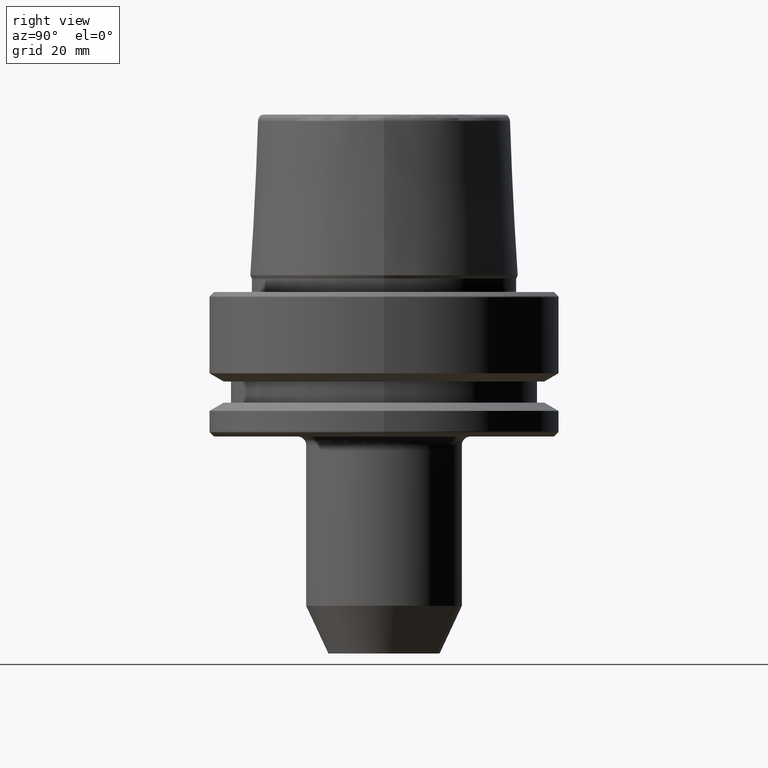
[diagram: clean part render]
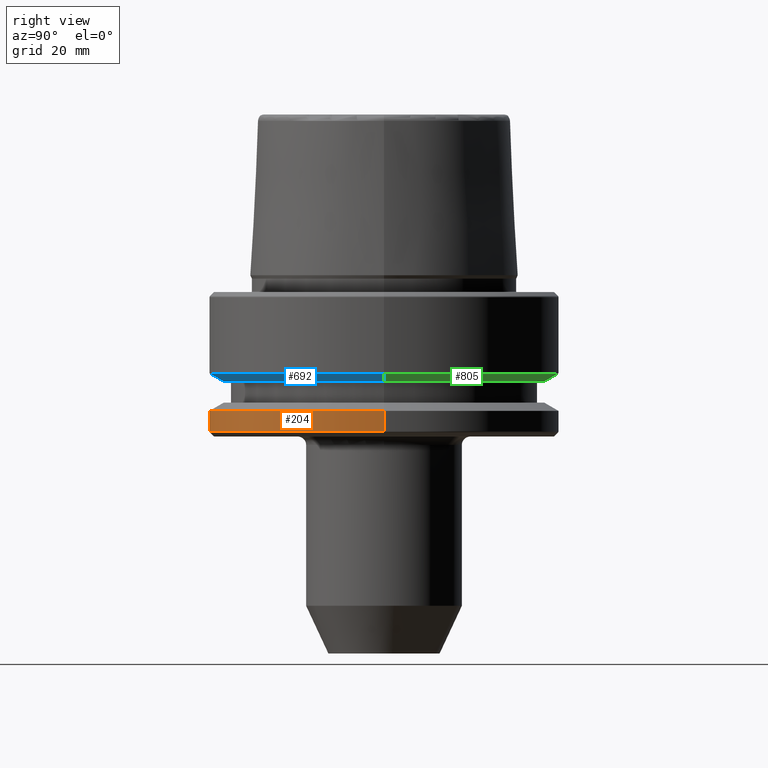
[diagram: same view with three faces highlighted in distinct colors, each labeled with its STEP entity id]
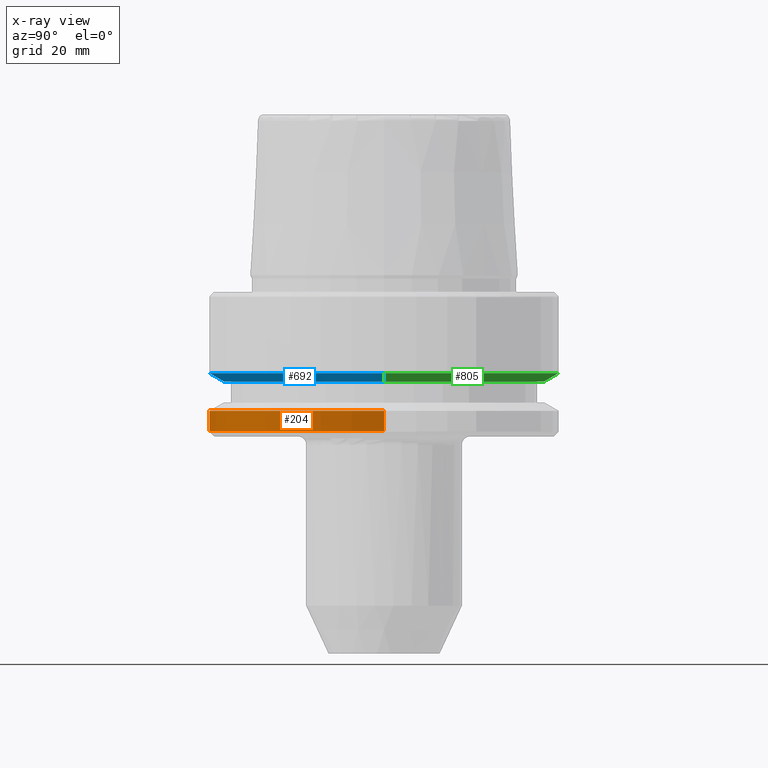
[diagram: x-ray of the same camera — body ghosted, the three highlighted faces saturated]
A machine part, right view with three faces highlighted in distinct colors.
The next image is the same camera in x-ray (body ghosted, the three faces saturated) — at least one of them is partly hidden behind the body in this view.
Their STEP definitions:

[orange] entity #204 — the highlighted cylindrical surface (partial cylindrical patch) has radius 31.5 mm, axis along (-0, -0, 1).
#15 = CIRCLE ( 'NONE', #195, 31.50000000000000000 ) ;
#28 = CIRCLE ( 'NONE', #1247, 31.50000000000000000 ) ;
#40 = ORIENTED_EDGE ( 'NONE', *, *, #126, .F. ) ;
#45 = CARTESIAN_POINT ( 'NONE',  ( 0.0000000000000000000, 0.0000000000000000000, 78.96908074195309300 ) ) ;
#114 = ORIENTED_EDGE ( 'NONE', *, *, #1073, .T. ) ;
#117 = EDGE_LOOP ( 'NONE', ( #1128, #613, #114, #40 ) ) ;
#126 = EDGE_CURVE ( 'NONE', #666, #1158, #28, .T. ) ;
#155 = VECTOR ( 'NONE', #1110, 1000.000000000000000 ) ;
#195 = AXIS2_PLACEMENT_3D ( 'NONE', #373, #1050, #475 ) ;
#201 = CARTESIAN_POINT ( 'NONE',  ( 31.50000000000000000, 0.0000000000000000000, 78.96908074195309300 ) ) ;
#204 = ADVANCED_FACE ( 'NONE', ( #1044 ), #1246, .T. ) ;
#308 = DIRECTION ( 'NONE',  ( -0.0000000000000000000, -0.0000000000000000000, 1.000000000000000000 ) ) ;
#351 = VERTEX_POINT ( 'NONE', #1201 ) ;
#371 = AXIS2_PLACEMENT_3D ( 'NONE', #45, #514, #949 ) ;
#373 = CARTESIAN_POINT ( 'NONE',  ( 0.0000000000000000000, 0.0000000000000000000, -25.03431457505077200 ) ) ;
#393 = VERTEX_POINT ( 'NONE', #1185 ) ;
#442 = CARTESIAN_POINT ( 'NONE',  ( -31.50000000000000000, 3.857637417314162700E-015, 78.96908074195309300 ) ) ;
#447 = VECTOR ( 'NONE', #308, 1000.000000000000000 ) ;
#471 = DIRECTION ( 'NONE',  ( 1.000000000000000000, 0.0000000000000000000, 0.0000000000000000000 ) ) ;
#475 = DIRECTION ( 'NONE',  ( 1.000000000000000000, 0.0000000000000000000, 0.0000000000000000000 ) ) ;
#514 = DIRECTION ( 'NONE',  ( -0.0000000000000000000, -0.0000000000000000000, 1.000000000000000000 ) ) ;
#584 = CARTESIAN_POINT ( 'NONE',  ( -31.50000000000000000, 0.0000000000000000000, -21.37749907475931700 ) ) ;
#603 = EDGE_CURVE ( 'NONE', #351, #666, #899, .T. ) ;
#613 = ORIENTED_EDGE ( 'NONE', *, *, #841, .T. ) ;
#645 = LINE ( 'NONE', #201, #447 ) ;
#666 = VERTEX_POINT ( 'NONE', #584 ) ;
#841 = EDGE_CURVE ( 'NONE', #351, #393, #15, .T. ) ;
#899 = LINE ( 'NONE', #442, #155 ) ;
#949 = DIRECTION ( 'NONE',  ( 1.000000000000000000, 0.0000000000000000000, 0.0000000000000000000 ) ) ;
#1019 = CARTESIAN_POINT ( 'NONE',  ( 0.0000000000000000000, 0.0000000000000000000, -21.37749907475931700 ) ) ;
#1044 = FACE_OUTER_BOUND ( 'NONE', #117, .T. ) ;
#1050 = DIRECTION ( 'NONE',  ( -0.0000000000000000000, -0.0000000000000000000, 1.000000000000000000 ) ) ;
#1065 = DIRECTION ( 'NONE',  ( -0.0000000000000000000, -0.0000000000000000000, 1.000000000000000000 ) ) ;
#1073 = EDGE_CURVE ( 'NONE', #393, #1158, #645, .T. ) ;
#1110 = DIRECTION ( 'NONE',  ( -0.0000000000000000000, -0.0000000000000000000, 1.000000000000000000 ) ) ;
#1128 = ORIENTED_EDGE ( 'NONE', *, *, #603, .F. ) ;
#1158 = VERTEX_POINT ( 'NONE', #1194 ) ;
#1185 = CARTESIAN_POINT ( 'NONE',  ( 31.50000000000000000, 0.0000000000000000000, -25.03431457505077200 ) ) ;
#1194 = CARTESIAN_POINT ( 'NONE',  ( 31.50000000000000000, 3.857637417314162700E-015, -21.37749907475931700 ) ) ;
#1201 = CARTESIAN_POINT ( 'NONE',  ( -31.50000000000000000, 3.857637417314162700E-015, -25.03431457505077200 ) ) ;
#1246 = CYLINDRICAL_SURFACE ( 'NONE', #371, 31.50000000000000000 ) ;
#1247 = AXIS2_PLACEMENT_3D ( 'NONE', #1019, #1065, #471 ) ;

[blue] entity #692 — the highlighted conical surface has half-angle 60 deg.
#14 = AXIS2_PLACEMENT_3D ( 'NONE', #235, #920, #340 ) ;
#36 = DIRECTION ( 'NONE',  ( -0.0000000000000000000, -0.0000000000000000000, 1.000000000000000000 ) ) ;
#38 = AXIS2_PLACEMENT_3D ( 'NONE', #586, #36, #969 ) ;
#73 = DIRECTION ( 'NONE',  ( 0.8660254037844389300, 0.0000000000000000000, 0.4999999999999995000 ) ) ;
#97 = ORIENTED_EDGE ( 'NONE', *, *, #153, .T. ) ;
#115 = CARTESIAN_POINT ( 'NONE',  ( -28.94089653438085100, 3.544237630528423800E-015, -16.10000000000001600 ) ) ;
#153 = EDGE_CURVE ( 'NONE', #820, #582, #858, .T. ) ;
#235 = CARTESIAN_POINT ( 'NONE',  ( 0.0000000000000000000, 0.0000000000000000000, -14.62250092524070100 ) ) ;
#301 = EDGE_LOOP ( 'NONE', ( #370, #97, #947, #406 ) ) ;
#340 = DIRECTION ( 'NONE',  ( 1.000000000000000000, 0.0000000000000000000, 0.0000000000000000000 ) ) ;
#345 = CARTESIAN_POINT ( 'NONE',  ( 0.0000000000000000000, 0.0000000000000000000, -16.10000000000001600 ) ) ;
#360 = CARTESIAN_POINT ( 'NONE',  ( -31.50000000000000000, 3.857637417314162700E-015, -14.62250092524070100 ) ) ;
#370 = ORIENTED_EDGE ( 'NONE', *, *, #558, .F. ) ;
#406 = ORIENTED_EDGE ( 'NONE', *, *, #1236, .F. ) ;
#414 = FACE_OUTER_BOUND ( 'NONE', #301, .T. ) ;
#462 = CARTESIAN_POINT ( 'NONE',  ( 28.94089653438085100, 0.0000000000000000000, -16.10000000000001600 ) ) ;
#473 = DIRECTION ( 'NONE',  ( 1.000000000000000000, 0.0000000000000000000, 0.0000000000000000000 ) ) ;
#478 = DIRECTION ( 'NONE',  ( -0.0000000000000000000, -0.0000000000000000000, 1.000000000000000000 ) ) ;
#489 = VECTOR ( 'NONE', #73, 1000.000000000000000 ) ;
#558 = EDGE_CURVE ( 'NONE', #820, #614, #868, .T. ) ;
#576 = CARTESIAN_POINT ( 'NONE',  ( 31.50000000000000000, 0.0000000000000000000, -14.62250092524070100 ) ) ;
#582 = VERTEX_POINT ( 'NONE', #462 ) ;
#586 = CARTESIAN_POINT ( 'NONE',  ( 0.0000000000000000000, 0.0000000000000000000, -16.10000000000001600 ) ) ;
#614 = VERTEX_POINT ( 'NONE', #360 ) ;
#676 = LINE ( 'NONE', #1248, #489 ) ;
#680 = VERTEX_POINT ( 'NONE', #576 ) ;
#692 = ADVANCED_FACE ( 'NONE', ( #414 ), #1057, .T. ) ;
#750 = CARTESIAN_POINT ( 'NONE',  ( -28.94089653438085100, 3.700937523921292900E-015, -16.10000000000001600 ) ) ;
#820 = VERTEX_POINT ( 'NONE', #750 ) ;
#829 = EDGE_CURVE ( 'NONE', #582, #680, #676, .T. ) ;
#858 = CIRCLE ( 'NONE', #38, 28.94089653438085100 ) ;
#868 = LINE ( 'NONE', #115, #1070 ) ;
#879 = CIRCLE ( 'NONE', #14, 31.50000000000000000 ) ;
#920 = DIRECTION ( 'NONE',  ( -0.0000000000000000000, -0.0000000000000000000, 1.000000000000000000 ) ) ;
#938 = AXIS2_PLACEMENT_3D ( 'NONE', #345, #478, #473 ) ;
#947 = ORIENTED_EDGE ( 'NONE', *, *, #829, .T. ) ;
#969 = DIRECTION ( 'NONE',  ( 1.000000000000000000, 0.0000000000000000000, 0.0000000000000000000 ) ) ;
#1057 = CONICAL_SURFACE ( 'NONE', #938, 28.94089653438085100, 1.047197551196598300 ) ;
#1070 = VECTOR ( 'NONE', #1163, 1000.000000000000000 ) ;
#1163 = DIRECTION ( 'NONE',  ( -0.8660254037844389300, 1.060575238724907300E-016, 0.4999999999999995000 ) ) ;
#1236 = EDGE_CURVE ( 'NONE', #614, #680, #879, .T. ) ;
#1248 = CARTESIAN_POINT ( 'NONE',  ( 28.94089653438085100, 0.0000000000000000000, -16.10000000000001600 ) ) ;

[green] entity #805 — the highlighted conical surface has half-angle 60 deg.
#73 = DIRECTION ( 'NONE',  ( 0.8660254037844389300, 0.0000000000000000000, 0.4999999999999995000 ) ) ;
#90 = FACE_OUTER_BOUND ( 'NONE', #786, .T. ) ;
#115 = CARTESIAN_POINT ( 'NONE',  ( -28.94089653438085100, 3.544237630528423800E-015, -16.10000000000001600 ) ) ;
#145 = DIRECTION ( 'NONE',  ( -0.0000000000000000000, -0.0000000000000000000, 1.000000000000000000 ) ) ;
#146 = DIRECTION ( 'NONE',  ( 1.000000000000000000, 0.0000000000000000000, 0.0000000000000000000 ) ) ;
#237 = AXIS2_PLACEMENT_3D ( 'NONE', #855, #275, #957 ) ;
#275 = DIRECTION ( 'NONE',  ( -0.0000000000000000000, -0.0000000000000000000, 1.000000000000000000 ) ) ;
#300 = ORIENTED_EDGE ( 'NONE', *, *, #866, .F. ) ;
#343 = DIRECTION ( 'NONE',  ( -0.0000000000000000000, -0.0000000000000000000, 1.000000000000000000 ) ) ;
#360 = CARTESIAN_POINT ( 'NONE',  ( -31.50000000000000000, 3.857637417314162700E-015, -14.62250092524070100 ) ) ;
#462 = CARTESIAN_POINT ( 'NONE',  ( 28.94089653438085100, 0.0000000000000000000, -16.10000000000001600 ) ) ;
#489 = VECTOR ( 'NONE', #73, 1000.000000000000000 ) ;
#511 = ORIENTED_EDGE ( 'NONE', *, *, #558, .T. ) ;
#558 = EDGE_CURVE ( 'NONE', #820, #614, #868, .T. ) ;
#568 = CIRCLE ( 'NONE', #237, 31.50000000000000000 ) ;
#576 = CARTESIAN_POINT ( 'NONE',  ( 31.50000000000000000, 0.0000000000000000000, -14.62250092524070100 ) ) ;
#582 = VERTEX_POINT ( 'NONE', #462 ) ;
#614 = VERTEX_POINT ( 'NONE', #360 ) ;
#676 = LINE ( 'NONE', #1248, #489 ) ;
#680 = VERTEX_POINT ( 'NONE', #576 ) ;
#729 = CARTESIAN_POINT ( 'NONE',  ( 0.0000000000000000000, 0.0000000000000000000, -16.10000000000001600 ) ) ;
#750 = CARTESIAN_POINT ( 'NONE',  ( -28.94089653438085100, 3.700937523921292900E-015, -16.10000000000001600 ) ) ;
#786 = EDGE_LOOP ( 'NONE', ( #873, #511, #300, #990 ) ) ;
#805 = ADVANCED_FACE ( 'NONE', ( #90 ), #1165, .T. ) ;
#820 = VERTEX_POINT ( 'NONE', #750 ) ;
#827 = DIRECTION ( 'NONE',  ( 1.000000000000000000, 0.0000000000000000000, 0.0000000000000000000 ) ) ;
#829 = EDGE_CURVE ( 'NONE', #582, #680, #676, .T. ) ;
#855 = CARTESIAN_POINT ( 'NONE',  ( 0.0000000000000000000, 0.0000000000000000000, -14.62250092524070100 ) ) ;
#866 = EDGE_CURVE ( 'NONE', #680, #614, #568, .T. ) ;
#868 = LINE ( 'NONE', #115, #1070 ) ;
#873 = ORIENTED_EDGE ( 'NONE', *, *, #1260, .T. ) ;
#925 = CARTESIAN_POINT ( 'NONE',  ( 0.0000000000000000000, 0.0000000000000000000, -16.10000000000001600 ) ) ;
#957 = DIRECTION ( 'NONE',  ( 1.000000000000000000, 0.0000000000000000000, 0.0000000000000000000 ) ) ;
#990 = ORIENTED_EDGE ( 'NONE', *, *, #829, .F. ) ;
#1052 = AXIS2_PLACEMENT_3D ( 'NONE', #925, #343, #146 ) ;
#1070 = VECTOR ( 'NONE', #1163, 1000.000000000000000 ) ;
#1114 = AXIS2_PLACEMENT_3D ( 'NONE', #729, #145, #827 ) ;
#1163 = DIRECTION ( 'NONE',  ( -0.8660254037844389300, 1.060575238724907300E-016, 0.4999999999999995000 ) ) ;
#1165 = CONICAL_SURFACE ( 'NONE', #1052, 28.94089653438085100, 1.047197551196598300 ) ;
#1171 = CIRCLE ( 'NONE', #1114, 28.94089653438085100 ) ;
#1248 = CARTESIAN_POINT ( 'NONE',  ( 28.94089653438085100, 0.0000000000000000000, -16.10000000000001600 ) ) ;
#1260 = EDGE_CURVE ( 'NONE', #582, #820, #1171, .T. ) ;